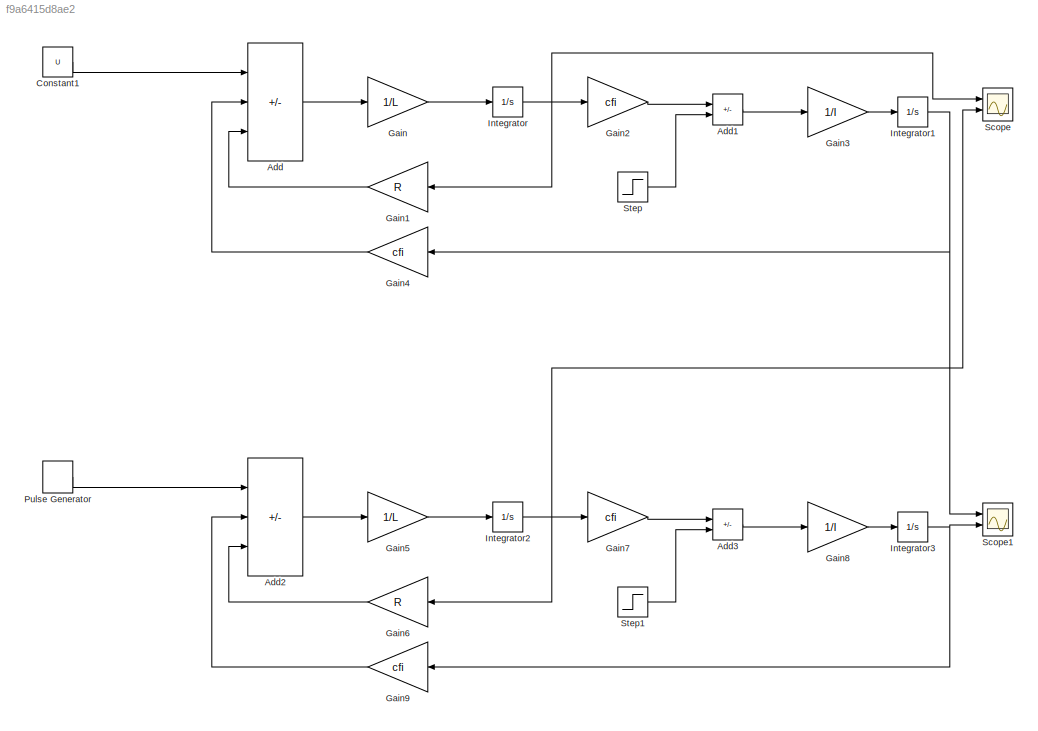
MODEL slx_f9a6415d8ae2
KIND model
CONFIG AbsTol = auto
CONFIG EnableMultiTasking = off
CONFIG FixedStep = auto
CONFIG MaxStep = 1e-3
CONFIG MinStep = auto
CONFIG RelTol = 1e-3
CONFIG SampleTimeConstraint = Unconstrained
CONFIG SolverName = VariableStepAuto
CONFIG StartTime = 0.0
CONFIG StopTime = 2
BLOCK [Sum] Add
  IconShape = rectangular
  Inputs = +--
  Ports = [3, 1]
BLOCK [Sum] Add1
  IconShape = rectangular
  Inputs = +-
  Ports = [2, 1]
BLOCK [Sum] Add2
  IconShape = rectangular
  Inputs = +--
  Ports = [3, 1]
BLOCK [Sum] Add3
  IconShape = rectangular
  Inputs = +-
  Ports = [2, 1]
BLOCK [Constant] Constant1
  Value = U
BLOCK [Gain] Gain
  Gain = 1/L
BLOCK [Gain] Gain1
  Gain = R
BLOCK [Gain] Gain2
  Gain = cfi
BLOCK [Gain] Gain3
  Gain = 1/I
BLOCK [Gain] Gain4
  Gain = cfi
BLOCK [Gain] Gain5
  Gain = 1/L
BLOCK [Gain] Gain6
  Gain = R
BLOCK [Gain] Gain7
  Gain = cfi
BLOCK [Gain] Gain8
  Gain = 1/I
BLOCK [Gain] Gain9
  Gain = cfi
BLOCK [Integrator] Integrator
  Ports = [1, 1]
BLOCK [Integrator] Integrator1
  Ports = [1, 1]
BLOCK [Integrator] Integrator2
  Ports = [1, 1]
BLOCK [Integrator] Integrator3
  Ports = [1, 1]
BLOCK [DiscretePulseGenerator] Pulse Generator
  Amplitude = U
  Period = 1/10000
  Ports = [0, 1]
  PulseType = Time based
  PulseWidth = 50
BLOCK [Scope] Scope
  Floating = off
  NumInputPorts = 2
  Ports = [2]
  ScopeSpecificationString = Simulink.scopes.TimeScopeBlockCfg('CurrentConfiguration', extmgr.ConfigurationSet(extmgr.Configuration('Core','General UI',true),extmgr.Configuration('Core','Source UI',true),extmgr.Configuration('Sources','WiredSimulink',true),extmgr.Configuration('Visuals','Time Domain',true,'SerializedDisplays',{struct('MinYLimReal','-0.07447','MaxYLimReal','0.6702','YLabelReal','','MinYLimMag','0.00000','MaxYL...<+2104ch>
BLOCK [Scope] Scope1
  Floating = off
  NumInputPorts = 2
  Ports = [2]
  ScopeSpecificationString = Simulink.scopes.TimeScopeBlockCfg('CurrentConfiguration', extmgr.ConfigurationSet(extmgr.Configuration('Core','General UI',true),extmgr.Configuration('Core','Source UI',true),extmgr.Configuration('Sources','WiredSimulink',true,'DataLoggingVariableName','ScopeData1'),extmgr.Configuration('Visuals','Time Domain',true,'SerializedDisplays',{struct('MinYLimReal','-14.99933','MaxYLimReal','134.99394','Y...<+2152ch>
BLOCK [Step] Step
  After = Mz
  SampleTime = 0
BLOCK [Step] Step1
  After = Mz
  SampleTime = 0
LINE Add1:1 -> Gain3:1
LINE Add2:1 -> Gain5:1
LINE Add3:1 -> Gain8:1
LINE Add:1 -> Gain:1
LINE Constant1:1 -> Add:1
LINE Gain1:1 -> Add:3
LINE Gain2:1 -> Add1:1
LINE Gain3:1 -> Integrator1:1
LINE Gain4:1 -> Add:2
LINE Gain5:1 -> Integrator2:1
LINE Gain6:1 -> Add2:3
LINE Gain7:1 -> Add3:1
LINE Gain8:1 -> Integrator3:1
LINE Gain9:1 -> Add2:2
LINE Gain:1 -> Integrator:1
NET Integrator1:1 -> Gain4:1, Scope1:1
NET Integrator2:1 -> Gain6:1, Gain7:1, Scope:2
NET Integrator3:1 -> Gain9:1, Scope1:2
NET Integrator:1 -> Gain1:1, Gain2:1, Scope:1
LINE Pulse Generator:1 -> Add2:1
LINE Step1:1 -> Add3:2
LINE Step:1 -> Add1:2
note: NET lines group one-source signal fan-out (src -> all destinations, sorted); 1:1 wires keep LINE
